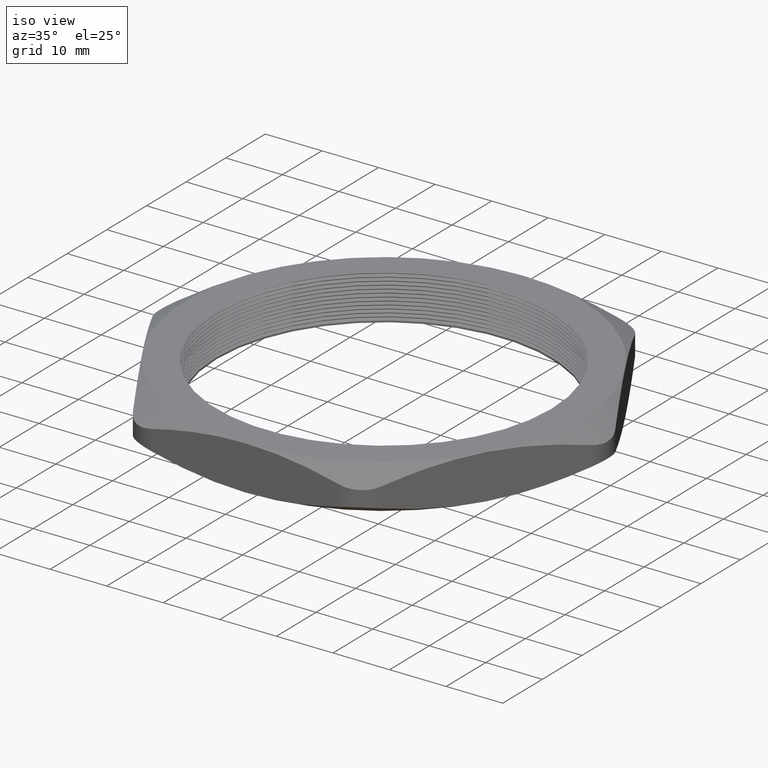
[diagram: clean part render]
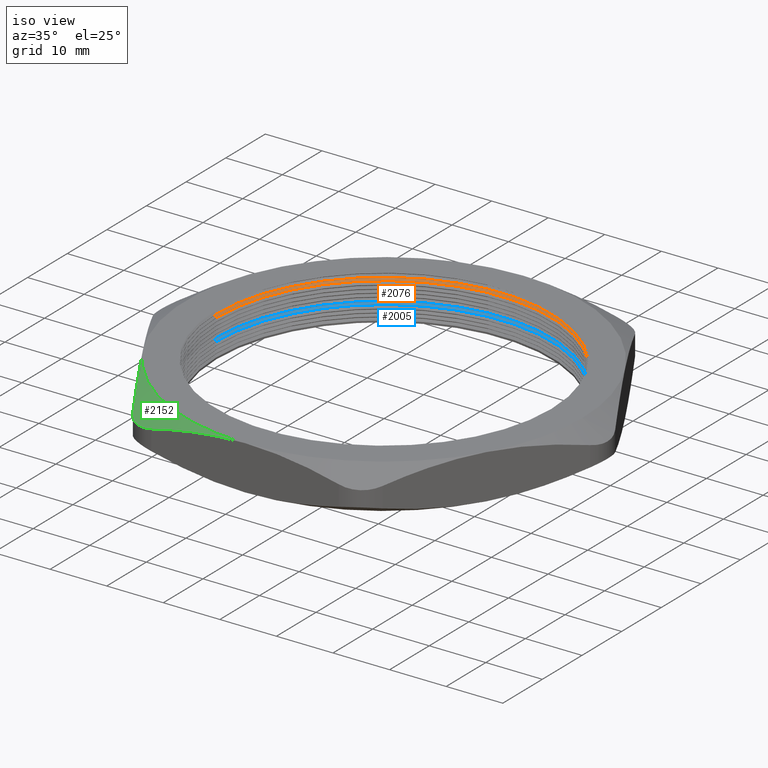
[diagram: same view with three faces highlighted in distinct colors, each labeled with its STEP entity id]
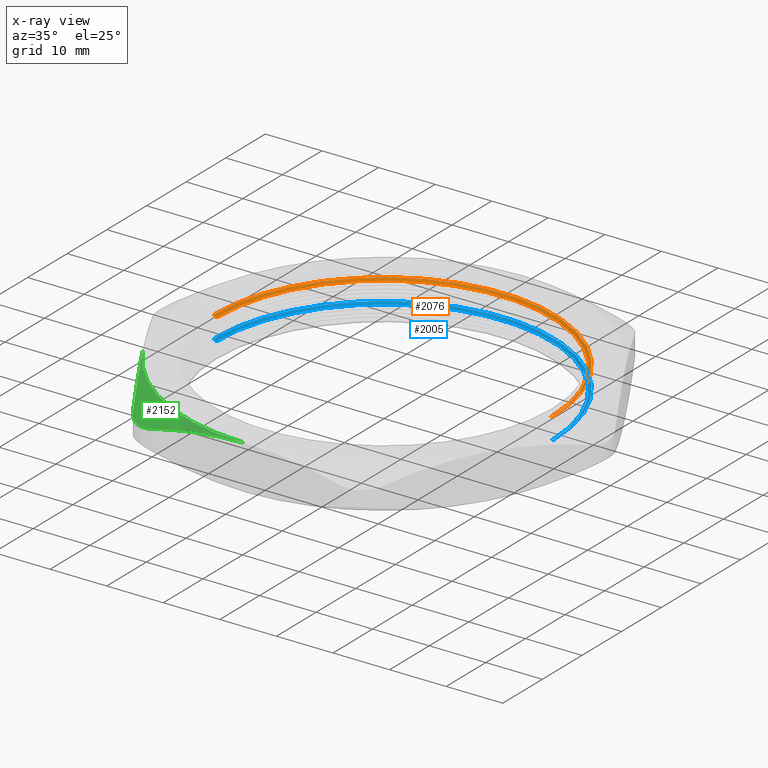
[diagram: x-ray of the same camera — body ghosted, the three highlighted faces saturated]
A machine part, iso view with three faces highlighted in distinct colors.
The next image is the same camera in x-ray (body ghosted, the three faces saturated) — at least one of them is partly hidden behind the body in this view.
Their STEP definitions:

[orange] entity #2076 — the highlighted conical surface has half-angle 60 deg.
#143 = DIRECTION ( 'NONE',  ( 1.000000000000000000, 0.0000000000000000000, 0.0000000000000000000 ) ) ;
#144 = DIRECTION ( 'NONE',  ( 0.0000000000000000000, 0.0000000000000000000, 1.000000000000000000 ) ) ;
#145 = CARTESIAN_POINT ( 'NONE',  ( 0.0000000000000000000, 0.0000000000000000000, 0.2619059892324149800 ) ) ;
#146 = AXIS2_PLACEMENT_3D ( 'NONE', #145, #144, #143 ) ;
#148 = CONICAL_SURFACE ( 'NONE', #146, 1.165000000000000000, 1.047197551196591200 ) ;
#149 = FACE_OUTER_BOUND ( 'NONE', #2077, .T. ) ;
#150 = DIRECTION ( 'NONE',  ( 1.000000000000000000, 0.0000000000000000000, 0.0000000000000000000 ) ) ;
#151 = DIRECTION ( 'NONE',  ( 0.0000000000000000000, 0.0000000000000000000, 1.000000000000000000 ) ) ;
#152 = AXIS2_PLACEMENT_3D ( 'NONE', #157, #151, #150 ) ;
#153 = CIRCLE ( 'NONE', #152, 1.185000000000000100 ) ;
#157 = CARTESIAN_POINT ( 'NONE',  ( 0.0000000000000000000, 0.0000000000000000000, 0.2734529946162077000 ) ) ;
#790 = LINE ( 'NONE', #852, #851 ) ;
#791 = CARTESIAN_POINT ( 'NONE',  ( -1.185000000000000100, 0.0000000000000000000, 0.2734529946162077000 ) ) ;
#797 = CARTESIAN_POINT ( 'NONE',  ( 1.185000000000000100, 1.451206456989613700E-016, 0.2734529946162077000 ) ) ;
#826 = DIRECTION ( 'NONE',  ( 0.8660254037844353800, 0.0000000000000000000, 0.5000000000000056600 ) ) ;
#827 = VECTOR ( 'NONE', #826, 39.37007874015748100 ) ;
#828 = CARTESIAN_POINT ( 'NONE',  ( 1.165000000000000000, 0.0000000000000000000, 0.2619059892324149800 ) ) ;
#829 = LINE ( 'NONE', #828, #827 ) ;
#848 = CARTESIAN_POINT ( 'NONE',  ( -1.165000000000000000, 0.0000000000000000000, 0.2619059892324149800 ) ) ;
#849 = CARTESIAN_POINT ( 'NONE',  ( 1.165000000000000000, 1.426713521006666400E-016, 0.2619059892324149800 ) ) ;
#850 = DIRECTION ( 'NONE',  ( -0.8660254037844353800, 1.060575238724902800E-016, 0.5000000000000056600 ) ) ;
#851 = VECTOR ( 'NONE', #850, 39.37007874015748100 ) ;
#852 = CARTESIAN_POINT ( 'NONE',  ( -1.165000000000000000, 1.426713521006666400E-016, 0.2619059892324149800 ) ) ;
#1348 = DIRECTION ( 'NONE',  ( 1.000000000000000000, 0.0000000000000000000, 0.0000000000000000000 ) ) ;
#1349 = DIRECTION ( 'NONE',  ( 0.0000000000000000000, 0.0000000000000000000, 1.000000000000000000 ) ) ;
#1350 = CARTESIAN_POINT ( 'NONE',  ( 0.0000000000000000000, 0.0000000000000000000, 0.2619059892324149800 ) ) ;
#1351 = AXIS2_PLACEMENT_3D ( 'NONE', #1350, #1349, #1348 ) ;
#1356 = CIRCLE ( 'NONE', #1351, 1.165000000000000000 ) ;
#2075 = EDGE_CURVE ( 'NONE', #2428, #2432, #153, .T. ) ;
#2076 = ADVANCED_FACE ( 'NONE', ( #149 ), #148, .F. ) ;
#2077 = EDGE_LOOP ( 'NONE', ( #2078, #2079, #2080, #2081 ) ) ;
#2078 = ORIENTED_EDGE ( 'NONE', *, *, #2433, .F. ) ;
#2079 = ORIENTED_EDGE ( 'NONE', *, *, #2734, .F. ) ;
#2080 = ORIENTED_EDGE ( 'NONE', *, *, #2445, .T. ) ;
#2081 = ORIENTED_EDGE ( 'NONE', *, *, #2075, .T. ) ;
#2428 = VERTEX_POINT ( 'NONE', #797 ) ;
#2432 = VERTEX_POINT ( 'NONE', #791 ) ;
#2433 = EDGE_CURVE ( 'NONE', #2436, #2432, #790, .T. ) ;
#2435 = VERTEX_POINT ( 'NONE', #849 ) ;
#2436 = VERTEX_POINT ( 'NONE', #848 ) ;
#2445 = EDGE_CURVE ( 'NONE', #2435, #2428, #829, .T. ) ;
#2734 = EDGE_CURVE ( 'NONE', #2435, #2436, #1356, .T. ) ;

[blue] entity #2005 — the highlighted conical surface has half-angle 60 deg.
#5 = CARTESIAN_POINT ( 'NONE',  ( 0.0000000000000000000, 0.0000000000000000000, 0.1234529946162077200 ) ) ;
#54 = DIRECTION ( 'NONE',  ( 1.000000000000000000, 0.0000000000000000000, 0.0000000000000000000 ) ) ;
#55 = DIRECTION ( 'NONE',  ( 0.0000000000000000000, 0.0000000000000000000, 1.000000000000000000 ) ) ;
#56 = CARTESIAN_POINT ( 'NONE',  ( 0.0000000000000000000, 0.0000000000000000000, 0.1119059892324149900 ) ) ;
#57 = AXIS2_PLACEMENT_3D ( 'NONE', #56, #55, #54 ) ;
#59 = CONICAL_SURFACE ( 'NONE', #57, 1.165000000000000000, 1.047197551196591200 ) ;
#60 = FACE_OUTER_BOUND ( 'NONE', #2006, .T. ) ;
#61 = DIRECTION ( 'NONE',  ( 1.000000000000000000, 0.0000000000000000000, 0.0000000000000000000 ) ) ;
#62 = DIRECTION ( 'NONE',  ( 0.0000000000000000000, 0.0000000000000000000, 1.000000000000000000 ) ) ;
#63 = AXIS2_PLACEMENT_3D ( 'NONE', #5, #62, #61 ) ;
#64 = CIRCLE ( 'NONE', #63, 1.185000000000000100 ) ;
#602 = LINE ( 'NONE', #659, #658 ) ;
#603 = CARTESIAN_POINT ( 'NONE',  ( 1.165000000000000000, 1.426713521006666400E-016, 0.1119059892324149900 ) ) ;
#604 = CARTESIAN_POINT ( 'NONE',  ( -1.165000000000000000, 0.0000000000000000000, 0.1119059892324149900 ) ) ;
#616 = DIRECTION ( 'NONE',  ( 0.8660254037844353800, 0.0000000000000000000, 0.5000000000000056600 ) ) ;
#617 = VECTOR ( 'NONE', #616, 39.37007874015748100 ) ;
#618 = CARTESIAN_POINT ( 'NONE',  ( 1.165000000000000000, 0.0000000000000000000, 0.1119059892324149900 ) ) ;
#619 = LINE ( 'NONE', #618, #617 ) ;
#620 = CARTESIAN_POINT ( 'NONE',  ( 1.185000000000000100, 1.451206456989613700E-016, 0.1234529946162077200 ) ) ;
#656 = CARTESIAN_POINT ( 'NONE',  ( -1.185000000000000100, 0.0000000000000000000, 0.1234529946162077200 ) ) ;
#657 = DIRECTION ( 'NONE',  ( -0.8660254037844353800, 1.060575238724902800E-016, 0.5000000000000056600 ) ) ;
#658 = VECTOR ( 'NONE', #657, 39.37007874015748100 ) ;
#659 = CARTESIAN_POINT ( 'NONE',  ( -1.165000000000000000, 1.426713521006666400E-016, 0.1119059892324149900 ) ) ;
#1395 = DIRECTION ( 'NONE',  ( 1.000000000000000000, 0.0000000000000000000, 0.0000000000000000000 ) ) ;
#1396 = DIRECTION ( 'NONE',  ( 0.0000000000000000000, 0.0000000000000000000, 1.000000000000000000 ) ) ;
#1397 = AXIS2_PLACEMENT_3D ( 'NONE', #1403, #1396, #1395 ) ;
#1398 = CIRCLE ( 'NONE', #1397, 1.165000000000000000 ) ;
#1403 = CARTESIAN_POINT ( 'NONE',  ( 0.0000000000000000000, 0.0000000000000000000, 0.1119059892324149900 ) ) ;
#2004 = EDGE_CURVE ( 'NONE', #2312, #2321, #64, .T. ) ;
#2005 = ADVANCED_FACE ( 'NONE', ( #60 ), #59, .F. ) ;
#2006 = EDGE_LOOP ( 'NONE', ( #2007, #2008, #2009, #2393 ) ) ;
#2007 = ORIENTED_EDGE ( 'NONE', *, *, #2320, .F. ) ;
#2008 = ORIENTED_EDGE ( 'NONE', *, *, #2744, .F. ) ;
#2009 = ORIENTED_EDGE ( 'NONE', *, *, #2313, .T. ) ;
#2312 = VERTEX_POINT ( 'NONE', #620 ) ;
#2313 = EDGE_CURVE ( 'NONE', #2317, #2312, #619, .T. ) ;
#2316 = VERTEX_POINT ( 'NONE', #604 ) ;
#2317 = VERTEX_POINT ( 'NONE', #603 ) ;
#2320 = EDGE_CURVE ( 'NONE', #2316, #2321, #602, .T. ) ;
#2321 = VERTEX_POINT ( 'NONE', #656 ) ;
#2393 = ORIENTED_EDGE ( 'NONE', *, *, #2004, .T. ) ;
#2744 = EDGE_CURVE ( 'NONE', #2317, #2316, #1398, .T. ) ;

[green] entity #2152 — the highlighted conical surface has half-angle 60 deg.
#229 = CARTESIAN_POINT ( 'NONE',  ( -0.6524058041842836200, -1.379999999999999400, 0.2254501298317891400 ) ) ;
#230 = CARTESIAN_POINT ( 'NONE',  ( -0.6739838505943444000, -1.380000000000000600, 0.2201255144235939000 ) ) ;
#231 = CARTESIAN_POINT ( 'NONE',  ( -0.6958164122272684200, -1.377161594292437100, 0.2159976292594437700 ) ) ;
#232 = CARTESIAN_POINT ( 'NONE',  ( -0.7273483264900753000, -1.368750815697884900, 0.2118687559801424000 ) ) ;
#233 = CARTESIAN_POINT ( 'NONE',  ( -0.7377039281080038900, -1.365257069693204700, 0.2108241464086657600 ) ) ;
#234 = CARTESIAN_POINT ( 'NONE',  ( -0.7580910746160620700, -1.356830955557880100, 0.2094191749496268900 ) ) ;
#235 = CARTESIAN_POINT ( 'NONE',  ( -0.7680824436321498400, -1.351899455791084600, 0.2090681656589831200 ) ) ;
#236 = CARTESIAN_POINT ( 'NONE',  ( -0.7870829444170253100, -1.340908798519790300, 0.2090768569373942500 ) ) ;
#237 = CARTESIAN_POINT ( 'NONE',  ( -0.7961768472429624500, -1.334817198311785800, 0.2094296390777398200 ) ) ;
#238 = CARTESIAN_POINT ( 'NONE',  ( -0.8135544857093420800, -1.321445292418499800, 0.2108323193192814800 ) ) ;
#239 = CARTESIAN_POINT ( 'NONE',  ( -0.8218996081851645000, -1.314096858460041700, 0.2118959863804336100 ) ) ;
#240 = CARTESIAN_POINT ( 'NONE',  ( -0.8450608079579745600, -1.290820586614856800, 0.2160714172718386200 ) ) ;
#241 = CARTESIAN_POINT ( 'NONE',  ( -0.8581259405755249400, -1.273682271630360400, 0.2201269005529677100 ) ) ;
#242 = CARTESIAN_POINT ( 'NONE',  ( -0.8689121551303874400, -1.254999999999999000, 0.2254501298317906600 ) ) ;
#248 = B_SPLINE_CURVE_WITH_KNOTS ( 'NONE', 3,
 ( #242, #241, #240, #239, #238, #237, #236, #235, #234, #233, #232, #231, #230, #229 ),
 .UNSPECIFIED., .F., .F.,
 ( 4, 2, 2, 2, 2, 2, 4 ),
 ( 7.949501638480626900E-018, 0.001670331507151272500, 0.002505497260726915500, 0.003340663014302558900, 0.004175828767878202300, 0.005010994521453845800, 0.006681326028605143000 ),
 .UNSPECIFIED. ) ;
#275 = DIRECTION ( 'NONE',  ( 1.000000000000000000, 0.0000000000000000000, 0.0000000000000000000 ) ) ;
#276 = DIRECTION ( 'NONE',  ( 0.0000000000000000000, 0.0000000000000000000, -1.000000000000000000 ) ) ;
#285 = AXIS2_PLACEMENT_3D ( 'NONE', #286, #276, #275 ) ;
#286 = CARTESIAN_POINT ( 'NONE',  ( 0.0000000000000000000, 0.0000000000000000000, 0.3100000000000000000 ) ) ;
#288 = CONICAL_SURFACE ( 'NONE', #285, 1.380000000000000100, 1.047197551196600100 ) ;
#289 = FACE_OUTER_BOUND ( 'NONE', #2153, .T. ) ;
#1471 = CARTESIAN_POINT ( 'NONE',  ( 2.365849761790801000E-016, -1.379999999999999200, 0.3100000000000000000 ) ) ;
#1472 = CARTESIAN_POINT ( 'NONE',  ( -0.1099074967229245200, -1.379999999999999400, 0.3100000000000003900 ) ) ;
#1473 = CARTESIAN_POINT ( 'NONE',  ( -0.2191816791453806700, -1.379999999999999700, 0.3023275802760436200 ) ) ;
#1474 = CARTESIAN_POINT ( 'NONE',  ( -0.3822464863796540800, -1.379999999999999400, 0.2805642548878928800 ) ) ;
#1475 = CARTESIAN_POINT ( 'NONE',  ( -0.4364618021664497000, -1.379999999999999200, 0.2716183576509410600 ) ) ;
#1476 = CARTESIAN_POINT ( 'NONE',  ( -0.5446424934511037200, -1.379999999999999400, 0.2506986088086787200 ) ) ;
#1477 = CARTESIAN_POINT ( 'NONE',  ( -0.5987206088999214000, -1.379999999999999200, 0.2386975301094061100 ) ) ;
#1478 = CARTESIAN_POINT ( 'NONE',  ( -0.6524058041842836200, -1.379999999999999400, 0.2254501298317891400 ) ) ;
#1492 = B_SPLINE_CURVE_WITH_KNOTS ( 'NONE', 3,
 ( #1478, #1477, #1476, #1475, #1474, #1473, #1472, #1471 ),
 .UNSPECIFIED., .F., .F.,
 ( 4, 2, 2, 4 ),
 ( 0.04061174981613695900, 0.04478876854507062000, 0.04896578727400428800, 0.05731982473187161700 ),
 .UNSPECIFIED. ) ;
#1529 = CARTESIAN_POINT ( 'NONE',  ( 2.365849761790801000E-016, -1.379999999999999200, 0.3100000000000000000 ) ) ;
#1531 = CARTESIAN_POINT ( 'NONE',  ( -0.6524058041842836200, -1.379999999999999400, 0.2254501298317891400 ) ) ;
#1579 = CARTESIAN_POINT ( 'NONE',  ( -1.195115057222525500, -0.6899999999999992800, 0.3100000000000000000 ) ) ;
#1580 = B_SPLINE_CURVE_WITH_KNOTS ( 'NONE', 3,
 ( #1636, #1635, #1634, #1633, #1632, #1631, #1630, #1629, #1628, #1627 ),
 .UNSPECIFIED., .F., .F.,
 ( 4, 2, 2, 2, 4 ),
 ( 0.02047705138538595900, 0.02255677289532729100, 0.02463649440526862600, 0.02879593742515129700, 0.03711482346491664500 ),
 .UNSPECIFIED. ) ;
#1581 = CARTESIAN_POINT ( 'NONE',  ( -0.8689121551303874400, -1.254999999999999000, 0.2254501298317906600 ) ) ;
#1627 = CARTESIAN_POINT ( 'NONE',  ( -0.8689121551303874400, -1.254999999999999000, 0.2254501298317906600 ) ) ;
#1628 = CARTESIAN_POINT ( 'NONE',  ( -0.9222822964244290500, -1.162560203671589600, 0.2517894444547583200 ) ) ;
#1629 = CARTESIAN_POINT ( 'NONE',  ( -0.9760731780192172200, -1.069391663765493900, 0.2730486519549004100 ) ) ;
#1630 = CARTESIAN_POINT ( 'NONE',  ( -1.057590622839086600, -0.9281993076342891500, 0.2949023157344900500 ) ) ;
#1631 = CARTESIAN_POINT ( 'NONE',  ( -1.084901594054454900, -0.8808953178852196900, 0.3005147175850679300 ) ) ;
#1632 = CARTESIAN_POINT ( 'NONE',  ( -1.126096183324480200, -0.8095441962726041000, 0.3061788010844172500 ) ) ;
#1633 = CARTESIAN_POINT ( 'NONE',  ( -1.139865678699427900, -0.7856947306886094000, 0.3076084240357874200 ) ) ;
#1634 = CARTESIAN_POINT ( 'NONE',  ( -1.167483135742157800, -0.7378598919147505400, 0.3095202513707784300 ) ) ;
#1635 = CARTESIAN_POINT ( 'NONE',  ( -1.181328527765491900, -0.7138789694796263700, 0.3100000000000001100 ) ) ;
#1636 = CARTESIAN_POINT ( 'NONE',  ( -1.195115057222525500, -0.6899999999999992800, 0.3100000000000000000 ) ) ;
#1683 = DIRECTION ( 'NONE',  ( 1.000000000000000000, 0.0000000000000000000, 0.0000000000000000000 ) ) ;
#1684 = DIRECTION ( 'NONE',  ( 0.0000000000000000000, 0.0000000000000000000, 1.000000000000000000 ) ) ;
#1685 = CARTESIAN_POINT ( 'NONE',  ( 0.0000000000000000000, 0.0000000000000000000, 0.3100000000000000000 ) ) ;
#1686 = AXIS2_PLACEMENT_3D ( 'NONE', #1685, #1684, #1683 ) ;
#1687 = CIRCLE ( 'NONE', #1686, 1.380000000000000100 ) ;
#2143 = EDGE_CURVE ( 'NONE', #2845, #2826, #248, .T. ) ;
#2144 = ORIENTED_EDGE ( 'NONE', *, *, #2799, .T. ) ;
#2145 = ORIENTED_EDGE ( 'NONE', *, *, #2873, .F. ) ;
#2152 = ADVANCED_FACE ( 'NONE', ( #289 ), #288, .T. ) ;
#2153 = EDGE_LOOP ( 'NONE', ( #2154, #2155, #2144, #2145 ) ) ;
#2154 = ORIENTED_EDGE ( 'NONE', *, *, #2847, .T. ) ;
#2155 = ORIENTED_EDGE ( 'NONE', *, *, #2143, .T. ) ;
#2799 = EDGE_CURVE ( 'NONE', #2826, #2825, #1492, .T. ) ;
#2825 = VERTEX_POINT ( 'NONE', #1529 ) ;
#2826 = VERTEX_POINT ( 'NONE', #1531 ) ;
#2845 = VERTEX_POINT ( 'NONE', #1581 ) ;
#2847 = EDGE_CURVE ( 'NONE', #2848, #2845, #1580, .T. ) ;
#2848 = VERTEX_POINT ( 'NONE', #1579 ) ;
#2873 = EDGE_CURVE ( 'NONE', #2848, #2825, #1687, .T. ) ;